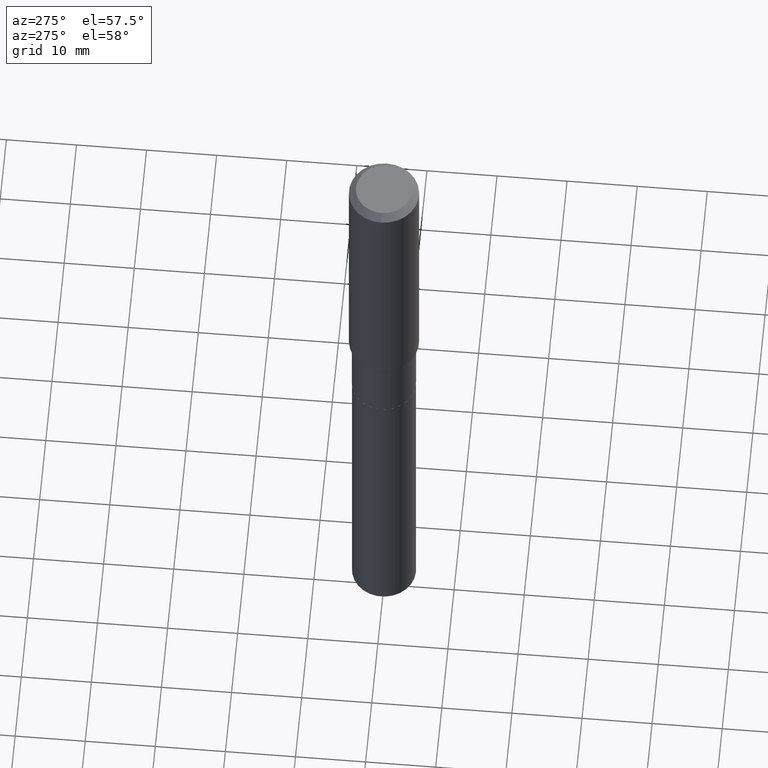
[diagram: clean part render]
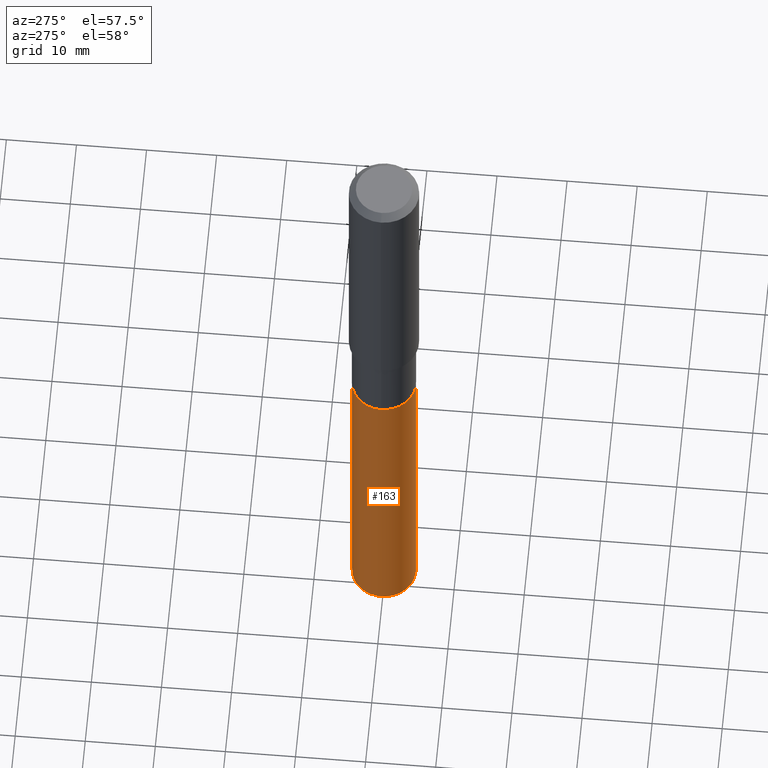
[diagram: same view with one face highlighted and labeled with its STEP entity id]
A machine part, auxiliary view. The second image highlights one B-rep face of the part: STEP entity #163.
In plain terms, the highlighted cylindrical surface (edge-blend (fillet) strip) has radius 4.5644 mm, axis along (-0, 0, 1).
Its self-contained STEP definition (entity closure, byte-faithful):
#2 = FACE_OUTER_BOUND ( 'NONE', #330, .T. ) ;
#24 = CARTESIAN_POINT ( 'NONE',  ( 1.276845296160997054E-15, 0.1796999999999929765, -2.012399999999999967 ) ) ;
#25 = DIRECTION ( 'NONE',  ( -2.445537497902415833E-29, 3.491382968394312088E-15, 1.000000000000000000 ) ) ;
#47 = CIRCLE ( 'NONE', #170, 0.1796999999999999986 ) ;
#53 = DIRECTION ( 'NONE',  ( -6.982962677686265922E-15, -1.000000000000000000, 3.040454083098790380E-15 ) ) ;
#55 = EDGE_CURVE ( 'NONE', #348, #205, #47, .T. ) ;
#61 = DIRECTION ( 'NONE',  ( -2.445537497902415833E-29, 3.491382968394311693E-15, 1.000000000000000000 ) ) ;
#91 = EDGE_CURVE ( 'NONE', #390, #459, #180, .T. ) ;
#95 = CARTESIAN_POINT ( 'NONE',  ( 1.276845296160949131E-15, 0.1796999999999929765, -2.012399999999999967 ) ) ;
#137 = CARTESIAN_POINT ( 'NONE',  ( 4.921261425566967720E-29, -7.026257046287944454E-15, -2.012399999999999523 ) ) ;
#139 = VECTOR ( 'NONE', #256, 39.37007874015748143 ) ;
#163 = ADVANCED_FACE ( 'NONE', ( #2 ), #187, .T. ) ;
#170 = AXIS2_PLACEMENT_3D ( 'NONE', #137, #25, #432 ) ;
#180 = CIRCLE ( 'NONE', #437, 0.1796999999999999986 ) ;
#185 = EDGE_CURVE ( 'NONE', #459, #205, #298, .T. ) ;
#187 = CYLINDRICAL_SURFACE ( 'NONE', #280, 0.1796999999999999986 ) ;
#195 = CARTESIAN_POINT ( 'NONE',  ( -1.254838393180172821E-15, -0.1797000000000070208, -2.012399999999999078 ) ) ;
#197 = ORIENTED_EDGE ( 'NONE', *, *, #91, .T. ) ;
#205 = VERTEX_POINT ( 'NONE', #451 ) ;
#237 = CARTESIAN_POINT ( 'NONE',  ( 1.276845296160996857E-15, 0.1796999999999861763, -3.959451815130432539 ) ) ;
#243 = CARTESIAN_POINT ( 'NONE',  ( -1.254838393180125292E-15, -0.1797000000000138209, -3.959451815130431207 ) ) ;
#256 = DIRECTION ( 'NONE',  ( -2.445537497902415833E-29, 3.491382968394311693E-15, 1.000000000000000000 ) ) ;
#262 = VECTOR ( 'NONE', #61, 39.37007874015748143 ) ;
#280 = AXIS2_PLACEMENT_3D ( 'NONE', #417, #486, #410 ) ;
#282 = ORIENTED_EDGE ( 'NONE', *, *, #457, .F. ) ;
#298 = LINE ( 'NONE', #195, #139 ) ;
#302 = ORIENTED_EDGE ( 'NONE', *, *, #55, .F. ) ;
#326 = LINE ( 'NONE', #95, #262 ) ;
#330 = EDGE_LOOP ( 'NONE', ( #282, #197, #456, #302 ) ) ;
#348 = VERTEX_POINT ( 'NONE', #24 ) ;
#390 = VERTEX_POINT ( 'NONE', #237 ) ;
#410 = DIRECTION ( 'NONE',  ( -6.982962677686265922E-15, -1.000000000000000000, 3.040454083098790380E-15 ) ) ;
#417 = CARTESIAN_POINT ( 'NONE',  ( 4.921261425566967720E-29, -7.026257046287944454E-15, -2.012399999999999523 ) ) ;
#432 = DIRECTION ( 'NONE',  ( -6.982962677686265922E-15, -1.000000000000000000, 3.040454083098790380E-15 ) ) ;
#434 = CARTESIAN_POINT ( 'NONE',  ( 9.682849649827402638E-29, -1.382416059221556642E-14, -3.959451815130432095 ) ) ;
#437 = AXIS2_PLACEMENT_3D ( 'NONE', #434, #483, #53 ) ;
#451 = CARTESIAN_POINT ( 'NONE',  ( -1.254838393180172821E-15, -0.1797000000000070208, -2.012399999999999078 ) ) ;
#456 = ORIENTED_EDGE ( 'NONE', *, *, #185, .T. ) ;
#457 = EDGE_CURVE ( 'NONE', #390, #348, #326, .T. ) ;
#459 = VERTEX_POINT ( 'NONE', #243 ) ;
#483 = DIRECTION ( 'NONE',  ( -2.445537497902415833E-29, 3.491382968394312088E-15, 1.000000000000000000 ) ) ;
#486 = DIRECTION ( 'NONE',  ( -2.445537497902415833E-29, 3.491382968394312088E-15, 1.000000000000000000 ) ) ;